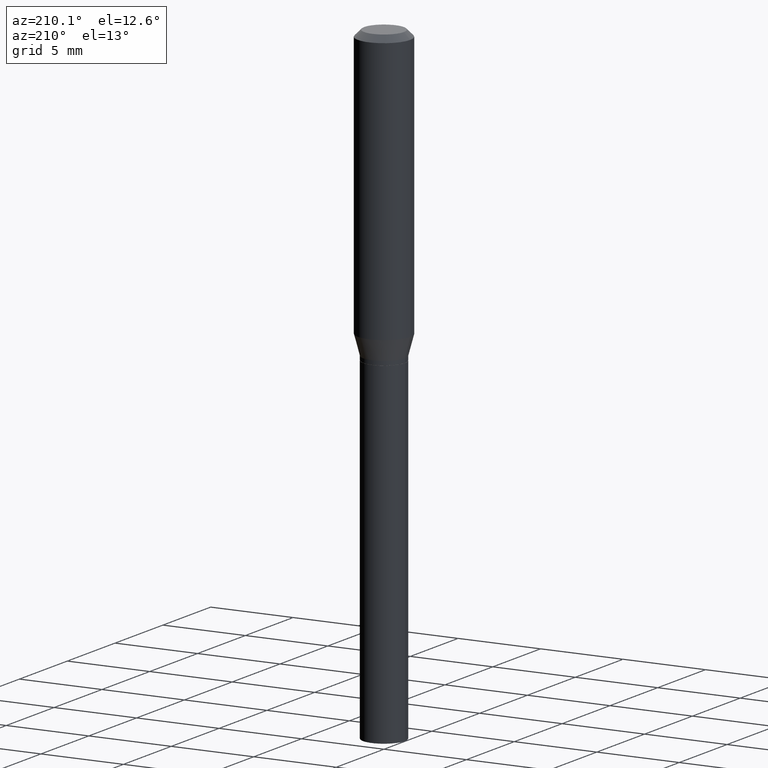
[diagram: clean part render]
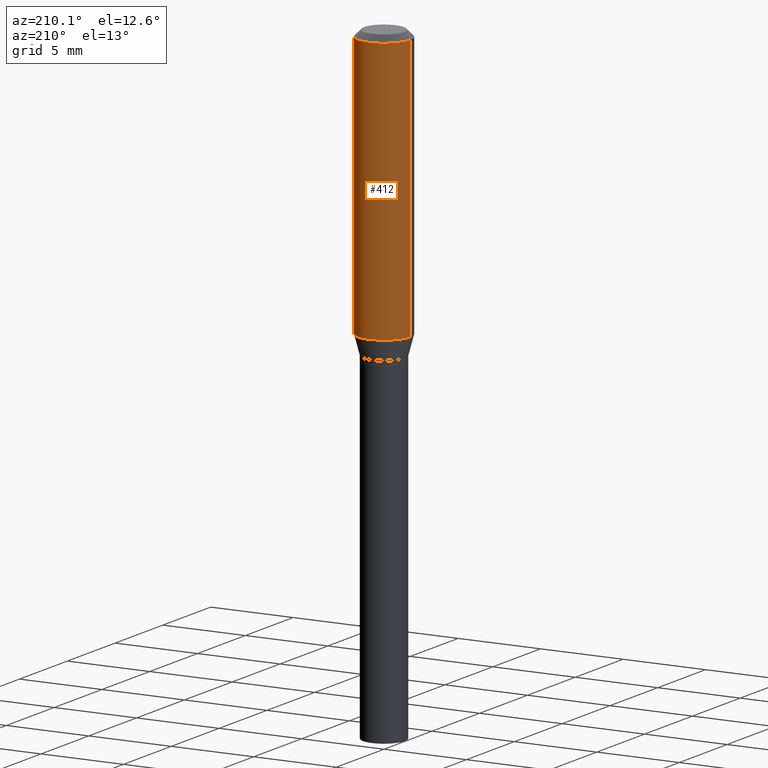
[diagram: same view with one face highlighted and labeled with its STEP entity id]
A machine part, auxiliary view. The second image highlights one B-rep face of the part: STEP entity #412.
In plain terms, the highlighted cylindrical surface (edge-blend (fillet) strip) has radius 1.5875 mm, axis along (-0, 0, 1).
Its self-contained STEP definition (entity closure, byte-faithful):
#24 = VERTEX_POINT ( 'NONE', #315 ) ;
#31 = AXIS2_PLACEMENT_3D ( 'NONE', #206, #340, #421 ) ;
#34 = LINE ( 'NONE', #354, #443 ) ;
#37 = VECTOR ( 'NONE', #319, 39.37007874015748143 ) ;
#51 = EDGE_CURVE ( 'NONE', #24, #156, #325, .T. ) ;
#59 = CYLINDRICAL_SURFACE ( 'NONE', #31, 0.06250000000000000000 ) ;
#71 = CIRCLE ( 'NONE', #302, 0.06250000000000000000 ) ;
#90 = ORIENTED_EDGE ( 'NONE', *, *, #51, .F. ) ;
#93 = FACE_OUTER_BOUND ( 'NONE', #311, .T. ) ;
#96 = ORIENTED_EDGE ( 'NONE', *, *, #99, .T. ) ;
#99 = EDGE_CURVE ( 'NONE', #193, #410, #34, .T. ) ;
#106 = DIRECTION ( 'NONE',  ( -2.445468806185136877E-29, 3.491481338843145188E-15, 1.000000000000000000 ) ) ;
#113 = DIRECTION ( 'NONE',  ( -2.445468806185136597E-29, 3.491481338843145583E-15, 1.000000000000000000 ) ) ;
#143 = DIRECTION ( 'NONE',  ( -2.445468806185136597E-29, 3.491481338843145583E-15, 1.000000000000000000 ) ) ;
#148 = EDGE_CURVE ( 'NONE', #156, #410, #71, .T. ) ;
#156 = VERTEX_POINT ( 'NONE', #432 ) ;
#193 = VERTEX_POINT ( 'NONE', #374 ) ;
#206 = CARTESIAN_POINT ( 'NONE',  ( 0.000000000000000000, 0.000000000000000000, 0.000000000000000000 ) ) ;
#225 = CIRCLE ( 'NONE', #261, 0.06250000000000000000 ) ;
#234 = DIRECTION ( 'NONE',  ( 1.000000000000000000, -6.982962677686262766E-15, 0.000000000000000000 ) ) ;
#241 = ORIENTED_EDGE ( 'NONE', *, *, #292, .T. ) ;
#250 = CARTESIAN_POINT ( 'NONE',  ( 0.06250000000000000000, -4.364351673553916694E-16, 3.047610484872459871E-30 ) ) ;
#258 = CARTESIAN_POINT ( 'NONE',  ( 3.668203209277705088E-31, -5.237222008264718399E-17, -0.01499999999999999944 ) ) ;
#261 = AXIS2_PLACEMENT_3D ( 'NONE', #293, #113, #234 ) ;
#287 = DIRECTION ( 'NONE',  ( 1.000000000000000000, -6.982962677686266711E-15, 0.000000000000000000 ) ) ;
#292 = EDGE_CURVE ( 'NONE', #24, #193, #225, .T. ) ;
#293 = CARTESIAN_POINT ( 'NONE',  ( 1.573290803355148401E-29, -2.246242301923756407E-15, -0.6433493649053894092 ) ) ;
#302 = AXIS2_PLACEMENT_3D ( 'NONE', #258, #143, #287 ) ;
#311 = EDGE_LOOP ( 'NONE', ( #241, #96, #348, #90 ) ) ;
#315 = CARTESIAN_POINT ( 'NONE',  ( 0.06250000000000000000, -2.682677469279148077E-15, -0.6433493649053894092 ) ) ;
#319 = DIRECTION ( 'NONE',  ( -2.445468806185136877E-29, 3.491481338843145188E-15, 1.000000000000000000 ) ) ;
#325 = LINE ( 'NONE', #250, #37 ) ;
#336 = CARTESIAN_POINT ( 'NONE',  ( -0.06250000000000000000, -7.052180511531390284E-16, -0.01499999999999999944 ) ) ;
#340 = DIRECTION ( 'NONE',  ( -2.445468806185136597E-29, 3.491481338843145583E-15, 1.000000000000000000 ) ) ;
#348 = ORIENTED_EDGE ( 'NONE', *, *, #148, .F. ) ;
#354 = CARTESIAN_POINT ( 'NONE',  ( -0.06250000000000000000, 4.440892098500626162E-16, -3.074334431409316114E-30 ) ) ;
#374 = CARTESIAN_POINT ( 'NONE',  ( -0.06250000000000000000, -1.802153092073694185E-15, -0.6433493649053894092 ) ) ;
#410 = VERTEX_POINT ( 'NONE', #336 ) ;
#412 = ADVANCED_FACE ( 'NONE', ( #93 ), #59, .T. ) ;
#421 = DIRECTION ( 'NONE',  ( 1.000000000000000000, -6.982962677686266711E-15, 4.876176775795935793E-29 ) ) ;
#432 = CARTESIAN_POINT ( 'NONE',  ( 0.06250000000000000000, -4.888073874380388472E-16, -0.01499999999999999944 ) ) ;
#443 = VECTOR ( 'NONE', #106, 39.37007874015748143 ) ;